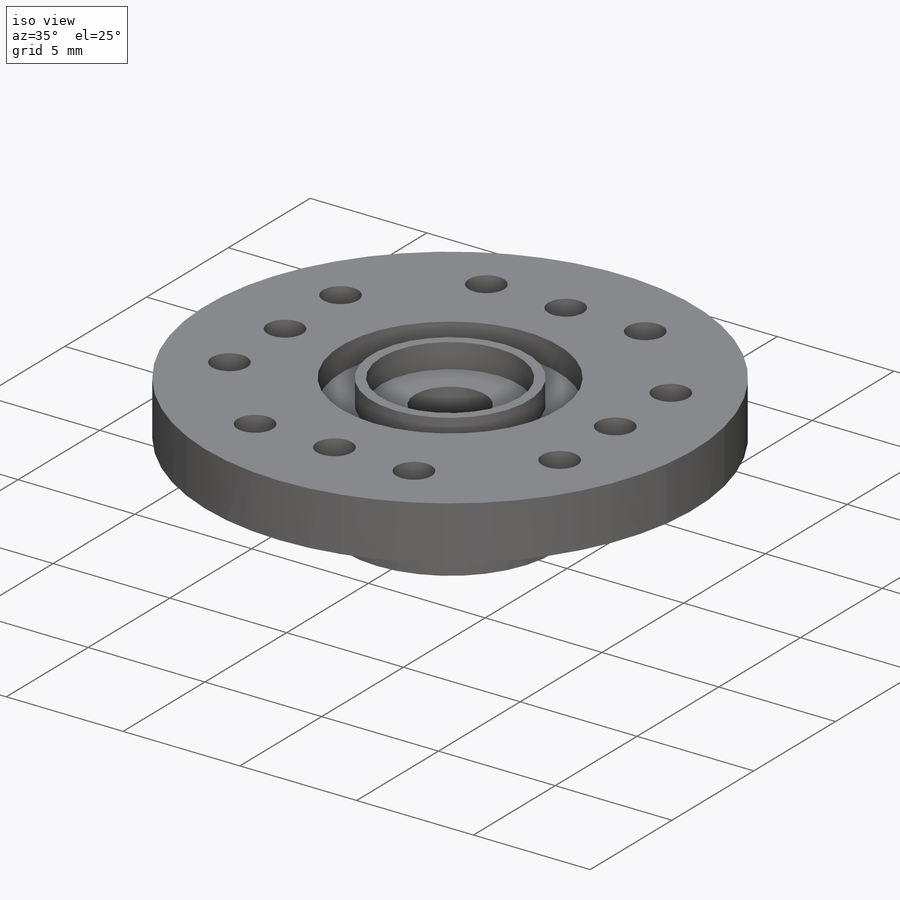
[diagram: iso view]
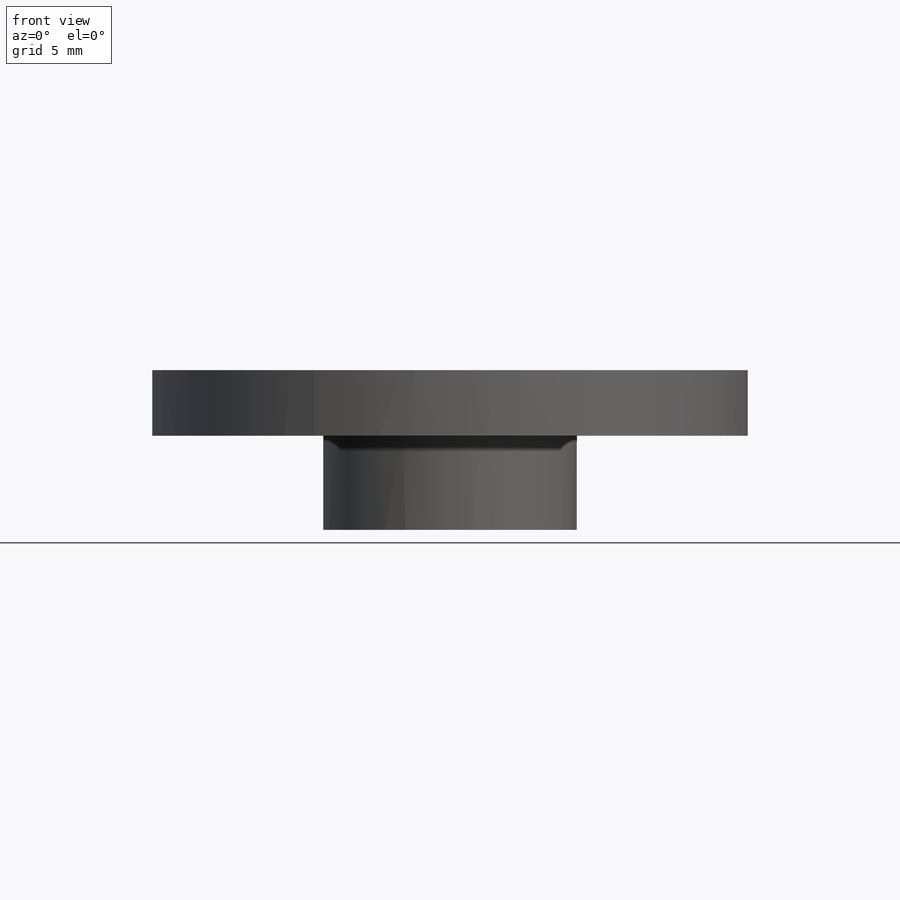
[diagram: front view]
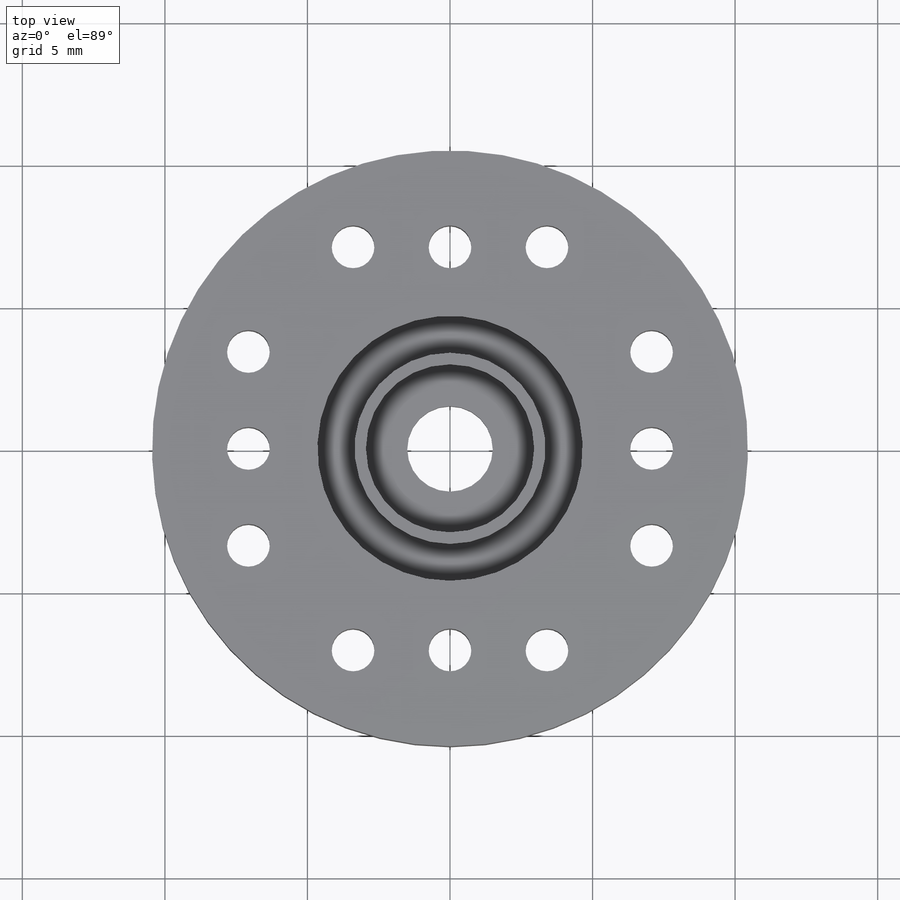
[diagram: top view]
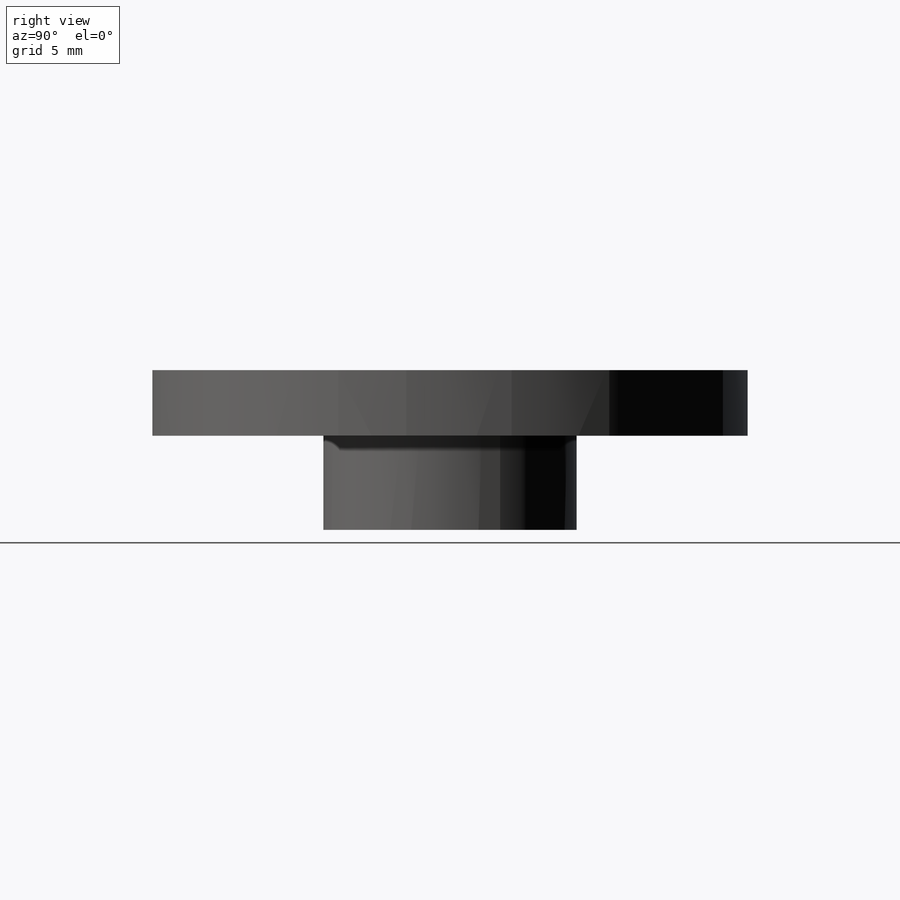
[diagram: right view]
SOLIDWORKS PART (.sldprt)
format: sldprt  version: not decoded by parser v0  size: 392,192 bytes
history: native  units: mm
features: sketch x9, cut_extrude x5, plane x3, material x1, revolve x1, extrude x1, pattern_circular x1 (+10 scaffold rows collapsed)
feature tree (31):
  scaffold x10  (default folders/planes/origin — collapsed)
  material  "PA Type 6"
  plane  "Plan de face"
  plane  "Plan de dessus"
  plane  "Plan de droite"
  sketch  "Esquisse1"  dims[c1.D1=20.9mm c1.D2=12.15mm c1.D3=1.7mm c1.D9=9.3mm c1.D10=6.7mm c1.D11=~5.884066mm c1.D12=3.0mm c2.D3=14.4mm c2.D4=~0.85146mm c2.D5=~2.326927mm c2.D6=~1.489115mm c3.D3=~1.187414mm c3.D4=1.5mm c3.D5=~15.787195mm c3.D1=50.0mm c4.D3=~54.377614mm c4.D4=3.0mm c4.D5=3.0mm c4.D6=3.0mm c4.D7=33.0mm c4.D8=~12.046202mm c5.D8=15.0deg c5.D11=0.4mm c5.D13=30.0mm c5.D3=7.0mm c5.D4=7.25mm c5.D5=7.25mm c6.D4=~6.858151mm c6.D5=~6.917283mm c6.D6=~6.817531mm c6.D7=~6.885117mm c6.D8=~13.629637mm c6.D3=14.2mm c7.D8=~20.081833mm c7.D3=20.0mm c7.D5=6.8mm c7.D6=20.0mm]
  sketch  "Esquisse2"  dims[c1.D1=~14.545753mm c1.D2=~4.135324mm c2.D1=8.9mm c2.D2=3.5mm c2.D3=3.3mm c2.D4=5.6mm c2.D5=2.3mm c3.D4=2.3mm]
  revolve  "Révolution1"  Angle=360deg
  sketch  "Esquisse3"  dims[D1=~15.956382mm]
  extrude  "Boss.-Extru.1"  [1 undecoded]
  sketch  "Esquisse4"
  cut_extrude  "Enlèv. mat.-Extru.1"  Depth=1.05mm
  sketch  "Esquisse5"
  cut_extrude  "Enlèv. mat.-Extru.2"  Depth=1.05mm
  sketch  "Esquisse6"
  cut_extrude  "Enlèv. mat.-Extru.3"  [1 undecoded]
  sketch  "Esquisse7"  dims[c1.D2=6.0mm c1.D7=~0.073448mm c1.D1=~0.372785mm c2.D1=45.6deg c2.D3=~0.253326mm c2.D4=0.5mm c2.D5=~2.703448mm c3.D5=7.2deg c3.D6=~0.372785mm c4.D6=60.0deg c4.D7=0.37mm]
  sketch  "Esquisse8"  dims[D1=0.05mm]
  cut_extrude  "Enlèv. mat.-Extru.4"  [1 undecoded]
  sketch  "Esquisse9"  dims[D2=0.05mm D3=~0.245635mm D1=0.0mm]
  cut_extrude  "Enlèv. mat.-Extru.5"  [1 undecoded]
  pattern_circular  "Répétition circulaire1"  Count=25 Angle=360deg
decode coverage: 10 of 17 modeling features carry decoded parameters
note: ~ marks probable driven/reference dimensions
note: 4 parameter values undecoded
summary: no parameter record found for 4 features
note: suppression state not decoded; provenance and decode notes live in map.json
